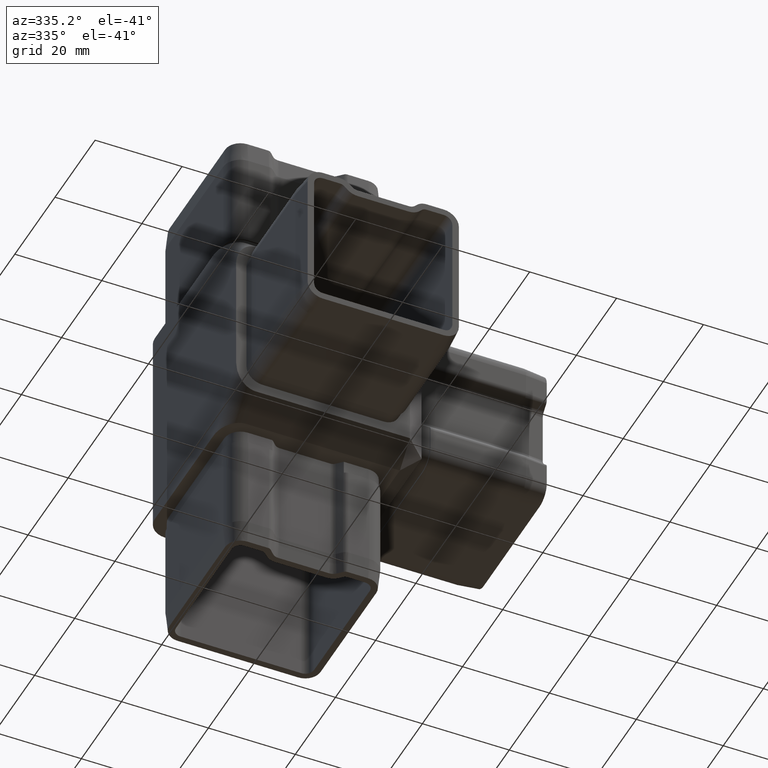
[diagram: clean part render]
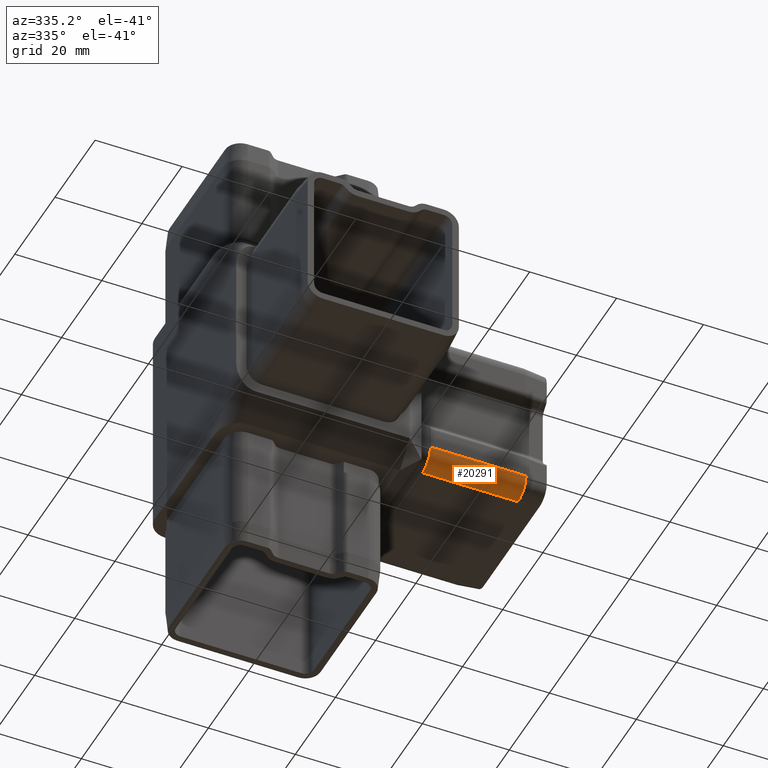
[diagram: same view with one face highlighted and labeled with its STEP entity id]
A machine part, auxiliary view. The second image highlights one B-rep face of the part: STEP entity #20291.
In plain terms, the highlighted cylindrical surface (edge-blend (fillet) strip) has radius 4 mm, axis along (-1, -0, 0).
Its self-contained STEP definition (entity closure, byte-faithful):
#140 = VERTEX_POINT ( 'NONE', #18972 ) ;
#940 = EDGE_LOOP ( 'NONE', ( #10000, #15605, #15913, #18612 ) ) ;
#1163 = AXIS2_PLACEMENT_3D ( 'NONE', #15037, #14783, #6850 ) ;
#2033 = VERTEX_POINT ( 'NONE', #14837 ) ;
#2313 = LINE ( 'NONE', #20657, #20827 ) ;
#2405 = EDGE_CURVE ( 'NONE', #14083, #140, #2313, .T. ) ;
#2854 = CARTESIAN_POINT ( 'NONE',  ( 47.50000000000000000, -11.39999999999997400, -17.90000000000003100 ) ) ;
#3785 = DIRECTION ( 'NONE',  ( -1.000000000000000000, -1.196361017915039700E-016, 4.440892098500625200E-016 ) ) ;
#5606 = VECTOR ( 'NONE', #3785, 1000.000000000000000 ) ;
#6436 = DIRECTION ( 'NONE',  ( -1.000000000000000000, -1.196361017915039700E-016, 4.440892098500625200E-016 ) ) ;
#6850 = DIRECTION ( 'NONE',  ( 0.0000000000000000000, 0.0000000000000000000, -1.000000000000000000 ) ) ;
#6977 = CARTESIAN_POINT ( 'NONE',  ( 47.50000000000000000, -15.39999999999998100, -13.90000000000003100 ) ) ;
#8045 = CARTESIAN_POINT ( 'NONE',  ( 25.49999999999999300, -11.39999999999997700, -13.90000000000001500 ) ) ;
#9385 = DIRECTION ( 'NONE',  ( 0.0000000000000000000, 0.0000000000000000000, 1.000000000000000000 ) ) ;
#9819 = DIRECTION ( 'NONE',  ( -8.673617379884023600E-016, 0.0000000000000000000, -1.000000000000000000 ) ) ;
#10000 = ORIENTED_EDGE ( 'NONE', *, *, #2405, .F. ) ;
#10445 = LINE ( 'NONE', #18190, #5606 ) ;
#10815 = CIRCLE ( 'NONE', #1163, 4.000000000000005300 ) ;
#11326 = EDGE_CURVE ( 'NONE', #12544, #2033, #10445, .T. ) ;
#12544 = VERTEX_POINT ( 'NONE', #6977 ) ;
#14083 = VERTEX_POINT ( 'NONE', #2854 ) ;
#14783 = DIRECTION ( 'NONE',  ( 1.000000000000000000, 1.196361017915039700E-016, -4.440892098500625200E-016 ) ) ;
#14837 = CARTESIAN_POINT ( 'NONE',  ( 25.49999999999999300, -15.39999999999998100, -13.90000000000001100 ) ) ;
#14864 = EDGE_CURVE ( 'NONE', #12544, #14083, #10815, .T. ) ;
#15037 = CARTESIAN_POINT ( 'NONE',  ( 47.50000000000000000, -11.39999999999997400, -13.90000000000002500 ) ) ;
#15605 = ORIENTED_EDGE ( 'NONE', *, *, #14864, .F. ) ;
#15913 = ORIENTED_EDGE ( 'NONE', *, *, #11326, .T. ) ;
#17297 = DIRECTION ( 'NONE',  ( -1.000000000000000000, -1.196361017915039700E-016, 4.440892098500625200E-016 ) ) ;
#18072 = CYLINDRICAL_SURFACE ( 'NONE', #18824, 4.000000000000007100 ) ;
#18190 = CARTESIAN_POINT ( 'NONE',  ( 52.49999999999999300, -15.39999999999997700, -13.90000000000003100 ) ) ;
#18612 = ORIENTED_EDGE ( 'NONE', *, *, #21052, .T. ) ;
#18824 = AXIS2_PLACEMENT_3D ( 'NONE', #21034, #6436, #9385 ) ;
#18972 = CARTESIAN_POINT ( 'NONE',  ( 25.49999999999998600, -11.39999999999998300, -17.90000000000001600 ) ) ;
#19539 = DIRECTION ( 'NONE',  ( 1.000000000000000000, 1.196361017915039700E-016, -4.440892098500625200E-016 ) ) ;
#19613 = FACE_OUTER_BOUND ( 'NONE', #940, .T. ) ;
#20291 = ADVANCED_FACE ( 'NONE', ( #19613 ), #18072, .T. ) ;
#20657 = CARTESIAN_POINT ( 'NONE',  ( 52.49999999999999300, -11.39999999999997400, -17.90000000000003400 ) ) ;
#20827 = VECTOR ( 'NONE', #17297, 1000.000000000000000 ) ;
#21032 = AXIS2_PLACEMENT_3D ( 'NONE', #8045, #19539, #9819 ) ;
#21034 = CARTESIAN_POINT ( 'NONE',  ( 52.49999999999999300, -11.39999999999997400, -13.90000000000002700 ) ) ;
#21052 = EDGE_CURVE ( 'NONE', #2033, #140, #21064, .T. ) ;
#21064 = CIRCLE ( 'NONE', #21032, 4.000000000000005300 ) ;